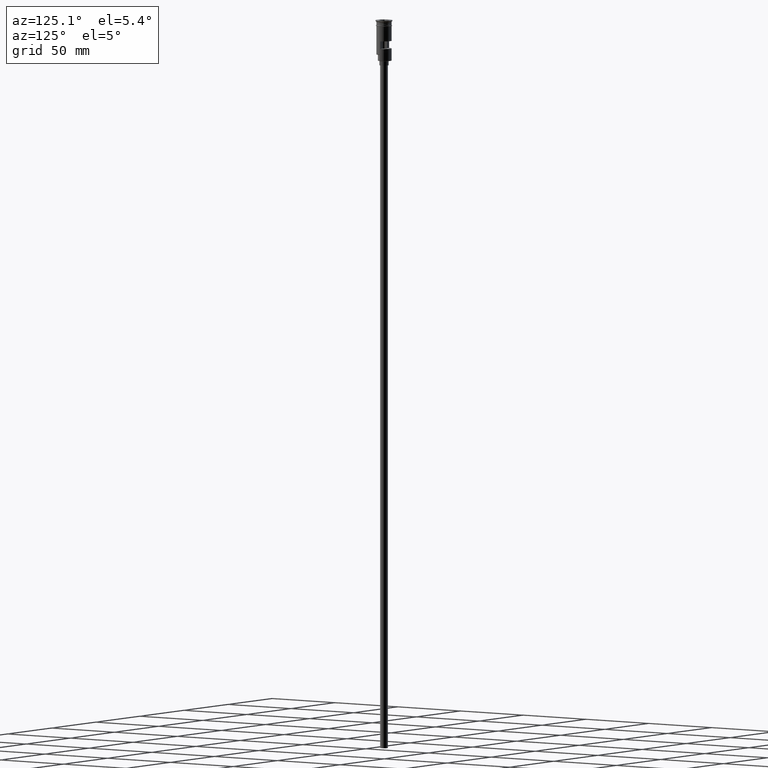
[diagram: clean part render]
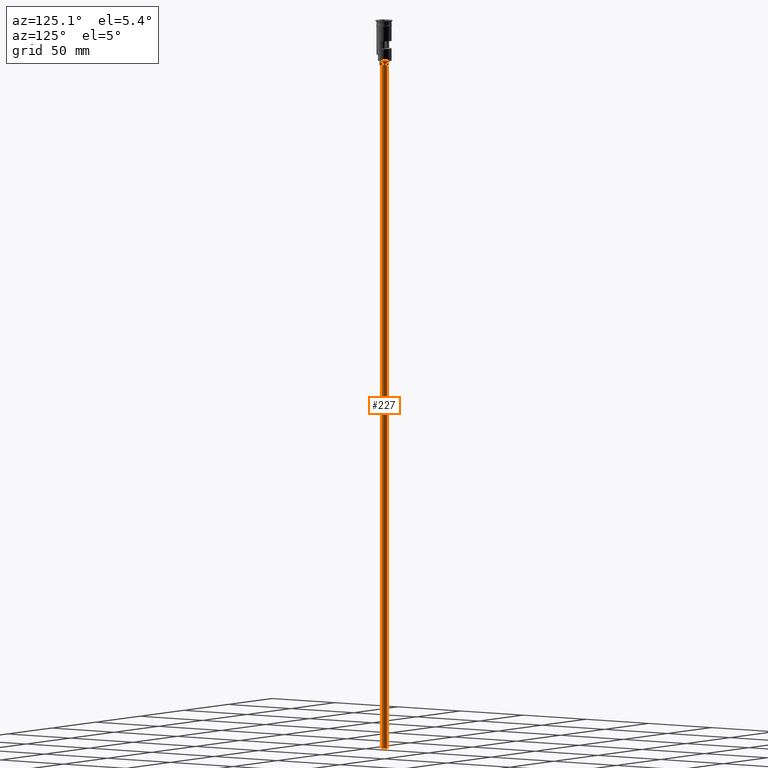
[diagram: same view with one face highlighted and labeled with its STEP entity id]
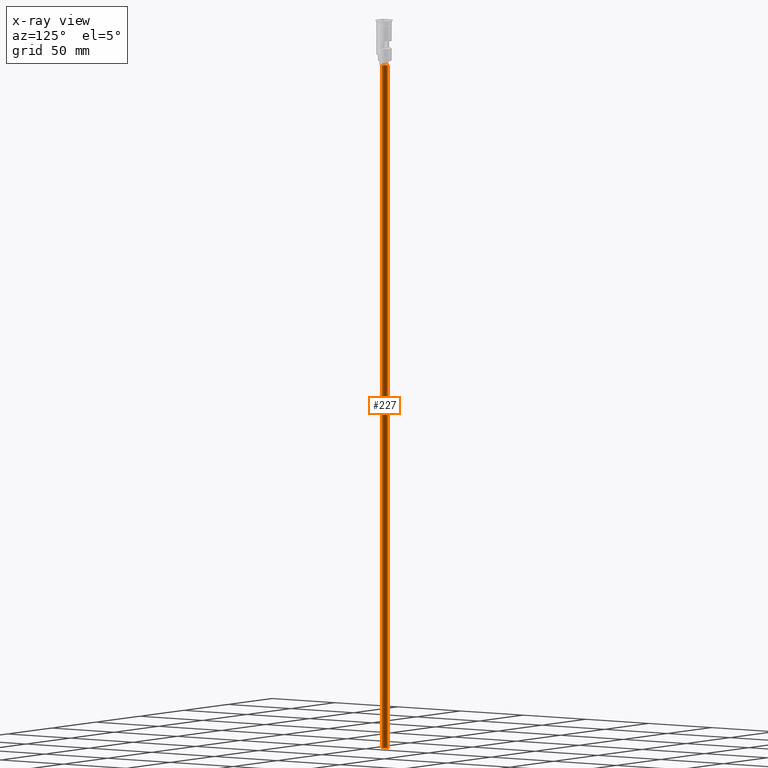
[diagram: x-ray of the same camera — body ghosted, the highlighted face saturated]
A machine part, auxiliary view. The second image highlights one B-rep face of the part: STEP entity #227.
The next image is the same camera in x-ray: the body ghosted, the highlighted face saturated — about 0% of this face is hidden behind the body in this view.
In plain terms, the highlighted cylindrical surface (edge-blend (fillet) strip) has radius 2.5 mm, axis along (-0, -0, 1).
Its self-contained STEP definition (entity closure, byte-faithful):
#17 = EDGE_CURVE ( 'NONE', #1533, #547, #1561, .T. ) ;
#30 = CIRCLE ( 'NONE', #382, 2.500000000000000000 ) ;
#47 = CARTESIAN_POINT ( 'NONE',  ( 0.000000000000000000, 0.000000000000000000, -29.50000000000000000 ) ) ;
#187 = CARTESIAN_POINT ( 'NONE',  ( 0.000000000000000000, 0.000000000000000000, -476.5000000000000568 ) ) ;
#227 = ADVANCED_FACE ( 'NONE', ( #309 ), #1301, .T. ) ;
#266 = VERTEX_POINT ( 'NONE', #951 ) ;
#275 = DIRECTION ( 'NONE',  ( -1.000000000000000000, 0.000000000000000000, 0.000000000000000000 ) ) ;
#277 = CIRCLE ( 'NONE', #1060, 2.500000000000000000 ) ;
#285 = DIRECTION ( 'NONE',  ( 1.000000000000000000, 0.000000000000000000, 0.000000000000000000 ) ) ;
#309 = FACE_OUTER_BOUND ( 'NONE', #978, .T. ) ;
#336 = VECTOR ( 'NONE', #1487, 1000.000000000000000 ) ;
#382 = AXIS2_PLACEMENT_3D ( 'NONE', #474, #1347, #1468 ) ;
#387 = EDGE_CURVE ( 'NONE', #266, #1533, #30, .T. ) ;
#395 = CARTESIAN_POINT ( 'NONE',  ( 2.500000000000000000, 0.000000000000000000, -476.5000000000000568 ) ) ;
#439 = CARTESIAN_POINT ( 'NONE',  ( 2.500000000000000000, 0.000000000000000000, -476.5000000000000568 ) ) ;
#474 = CARTESIAN_POINT ( 'NONE',  ( 0.000000000000000000, 0.000000000000000000, -476.5000000000000568 ) ) ;
#547 = VERTEX_POINT ( 'NONE', #1192 ) ;
#611 = VECTOR ( 'NONE', #617, 1000.000000000000000 ) ;
#617 = DIRECTION ( 'NONE',  ( -0.000000000000000000, -0.000000000000000000, 1.000000000000000000 ) ) ;
#748 = LINE ( 'NONE', #754, #611 ) ;
#754 = CARTESIAN_POINT ( 'NONE',  ( -2.500000000000000000, 3.061616997868383141E-16, -476.5000000000000568 ) ) ;
#821 = ORIENTED_EDGE ( 'NONE', *, *, #1395, .T. ) ;
#823 = EDGE_CURVE ( 'NONE', #952, #547, #277, .T. ) ;
#877 = DIRECTION ( 'NONE',  ( 0.000000000000000000, 0.000000000000000000, -1.000000000000000000 ) ) ;
#951 = CARTESIAN_POINT ( 'NONE',  ( -2.500000000000000000, 3.061616997868383141E-16, -476.5000000000000568 ) ) ;
#952 = VERTEX_POINT ( 'NONE', #1323 ) ;
#965 = ORIENTED_EDGE ( 'NONE', *, *, #387, .F. ) ;
#978 = EDGE_LOOP ( 'NONE', ( #965, #821, #1297, #1122 ) ) ;
#985 = AXIS2_PLACEMENT_3D ( 'NONE', #187, #1400, #285 ) ;
#1060 = AXIS2_PLACEMENT_3D ( 'NONE', #47, #877, #275 ) ;
#1122 = ORIENTED_EDGE ( 'NONE', *, *, #17, .F. ) ;
#1192 = CARTESIAN_POINT ( 'NONE',  ( 2.500000000000000000, 0.000000000000000000, -29.50000000000000000 ) ) ;
#1297 = ORIENTED_EDGE ( 'NONE', *, *, #823, .T. ) ;
#1301 = CYLINDRICAL_SURFACE ( 'NONE', #985, 2.500000000000000000 ) ;
#1323 = CARTESIAN_POINT ( 'NONE',  ( -2.500000000000000000, 3.061616997868383141E-16, -29.50000000000000000 ) ) ;
#1347 = DIRECTION ( 'NONE',  ( 0.000000000000000000, 0.000000000000000000, -1.000000000000000000 ) ) ;
#1395 = EDGE_CURVE ( 'NONE', #266, #952, #748, .T. ) ;
#1400 = DIRECTION ( 'NONE',  ( -0.000000000000000000, -0.000000000000000000, 1.000000000000000000 ) ) ;
#1468 = DIRECTION ( 'NONE',  ( -1.000000000000000000, 0.000000000000000000, 0.000000000000000000 ) ) ;
#1487 = DIRECTION ( 'NONE',  ( -0.000000000000000000, -0.000000000000000000, 1.000000000000000000 ) ) ;
#1533 = VERTEX_POINT ( 'NONE', #395 ) ;
#1561 = LINE ( 'NONE', #439, #336 ) ;